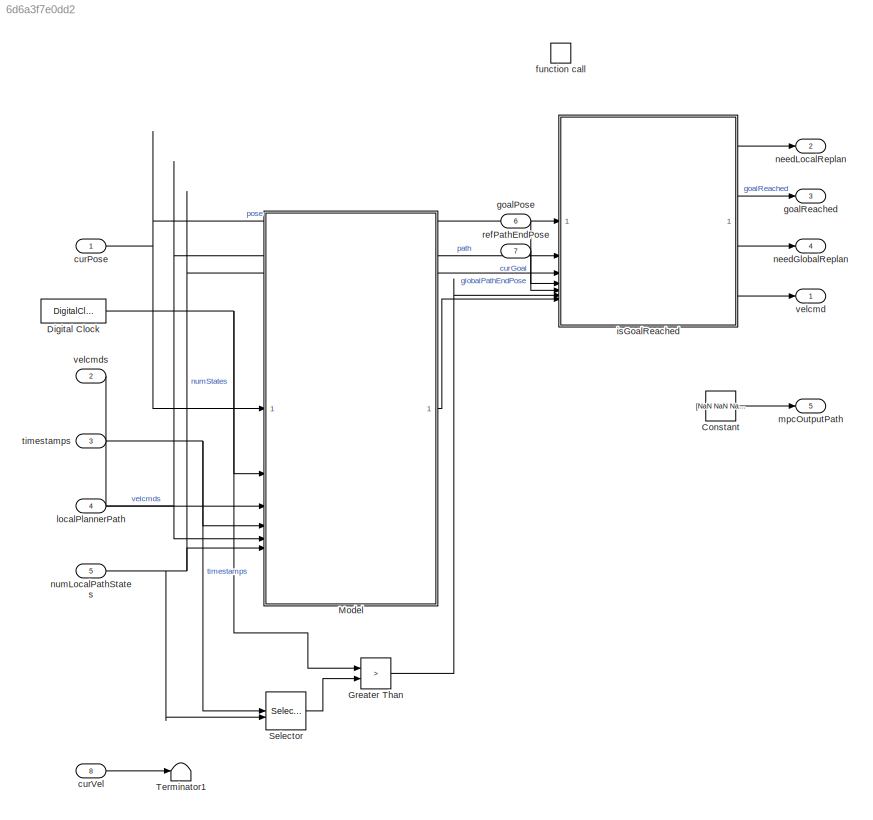
MODEL slx_6d6a3f7e0dd2
KIND model
CONFIG AbsTol = auto
CONFIG EnableMultiTasking = off
CONFIG FixedStep = 0.02
CONFIG MaxStep = auto
CONFIG MinStep = auto
CONFIG RelTol = 1e-3
CONFIG SampleTimeConstraint = Unconstrained
CONFIG SolverName = VariableStepAuto
CONFIG StartFcn = clf\nrng(1,"twister");\n
CONFIG StartTime = 0.0
CONFIG StopTime = inf
BLOCK [Constant] Constant
  Value = [NaN NaN NaN]
BLOCK [DigitalClock] Digital Clock
  SampleTime = -1
BLOCK [RelationalOperator] Greater Than
  InputSameDT = off
  Operator = >
  OutDataTypeStr = boolean
  RndMeth = Simplest
BLOCK [ModelReference] Model
  ModelNameDialog = ControllerSelector.slx
  ModelReferenceVersion = 2.7
BLOCK [Selector] Selector
  IndexOptions = Index vector (port),Select all
  Indices = [1 3],1
  InputPortWidth = 1
  NumberOfDimensions = 2
  OutputSizes = 1,1
BLOCK [Terminator] Terminator1
BLOCK [Inport] curPose
  OutDataTypeStr = double
  PortDimensions = [1 3]
  SamplingMode = Sample based
  SignalType = real
BLOCK [Inport] curVel
  OutDataTypeStr = double
  Port = 8
  PortDimensions = [1 2]
  SamplingMode = Sample based
  SignalType = real
BLOCK [TriggerPort] function call
  PortDimensions = 1
  SampleTime = [0.02,0]
  SampleTimeType = periodic
  StatesWhenEnabling = held
  TriggerSignalSampleTime = [0.02,0]
  TriggerType = function-call
  VariantControl = (inherit)
BLOCK [Inport] goalPose
  OutDataTypeStr = double
  Port = 6
  PortDimensions = [1 3]
  SamplingMode = Sample based
  SignalType = real
BLOCK [Outport] goalReached
  OutDataTypeStr = boolean
  Port = 3
  PortDimensions = 1
  SamplingMode = Sample based
  SignalType = real
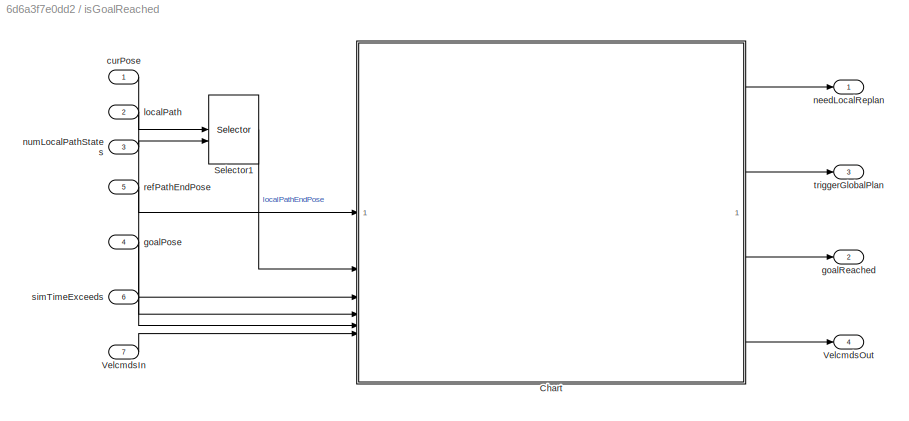
BLOCK [SubSystem] isGoalReached
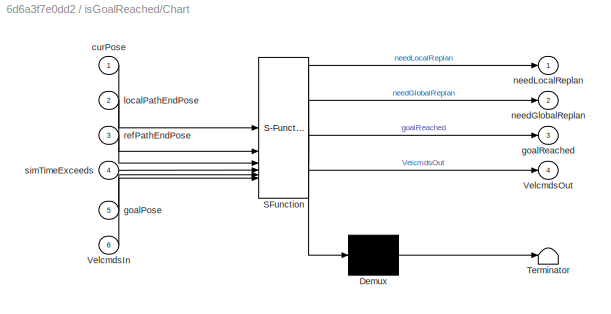
BLOCK [SubSystem] isGoalReached/Chart
  ErrorFcn = Stateflow.Translate.translate
  PermitHierarchicalResolution = ExplicitOnly
  PortSchema = {"entries":[{"content":{"sides":[{"content":{"connectorIds":["In1","In2","In3","In5","In4","In6"]},"type":"ConnectorPlacement.EquallySpacedRectSide","uuid":"dd2a119f-4099-42b7-8b31-d8f3ceb7ac2a"},{"content":{"connectorIds":["Out1","Out2","Out3","Out4"],"side":"RIGHT"},"type":"ConnectorPlacement.EquallySpacedRectSide","uuid":"fc746f1f-3a86-4997-a533-2ec7b0a515b4"},{"content":{"side":"TOP"},"type":"...<+273ch>
  SFBlockType = Chart
  TreatAsAtomicUnit = on
BLOCK [Demux] isGoalReached/Chart/ Demux 
  Outputs = 1
BLOCK [S-Function] isGoalReached/Chart/ SFunction 
  EnableBusSupport = on
  FunctionName = sf_sfun
  PortCounts = [6 5]
  SFcnIsStateOwnerBlock = off
  SFunctionDeploymentMode = off
  Tag = Stateflow S-Function 8
BLOCK [Terminator] isGoalReached/Chart/ Terminator 
BLOCK [Inport] isGoalReached/Chart/VelcmdsIn
  Port = 6
BLOCK [Outport] isGoalReached/Chart/VelcmdsOut
  Port = 4
BLOCK [Inport] isGoalReached/Chart/curPose
BLOCK [Inport] isGoalReached/Chart/goalPose
  Port = 5
BLOCK [Outport] isGoalReached/Chart/goalReached
  Port = 3
BLOCK [Inport] isGoalReached/Chart/localPathEndPose
  Port = 2
BLOCK [Outport] isGoalReached/Chart/needGlobalReplan
  Port = 2
BLOCK [Outport] isGoalReached/Chart/needLocalReplan
BLOCK [Inport] isGoalReached/Chart/refPathEndPose
  Port = 3
BLOCK [Inport] isGoalReached/Chart/simTimeExceeds
  Port = 4
BLOCK [Selector] isGoalReached/Selector1
  IndexOptions = Index vector (port),Select all
  Indices = [1 3],1
  InputPortWidth = 1
  NumberOfDimensions = 2
  OutputSizes = 1,1
BLOCK [Inport] isGoalReached/VelcmdsIn
  Port = 7
BLOCK [Outport] isGoalReached/VelcmdsOut
  Port = 4
BLOCK [Inport] isGoalReached/curPose
BLOCK [Inport] isGoalReached/goalPose
  Port = 4
BLOCK [Outport] isGoalReached/goalReached
  Port = 2
BLOCK [Inport] isGoalReached/localPath
  Port = 2
BLOCK [Outport] isGoalReached/needLocalReplan
BLOCK [Inport] isGoalReached/numLocalPathStates
  Port = 3
BLOCK [Inport] isGoalReached/refPathEndPose
  Port = 5
BLOCK [Inport] isGoalReached/simTimeExceeds
  Port = 6
BLOCK [Outport] isGoalReached/triggerGlobalPlan
  Port = 3
BLOCK [Inport] localPlannerPath
  OutDataTypeStr = double
  Port = 4
  PortDimensions = [1000 3]
  SamplingMode = Sample based
  SignalType = real
BLOCK [Outport] mpcOutputPath
  OutDataTypeStr = double
  Port = 5
  PortDimensions = [1 3]
  SamplingMode = Sample based
  SignalType = real
BLOCK [Outport] needGlobalReplan
  InitialOutput = 0
  OutDataTypeStr = boolean
  OutputWhenDisabled = reset
  Port = 4
  PortDimensions = 1
  SamplingMode = Sample based
  SignalType = real
BLOCK [Outport] needLocalReplan
  InitialOutput = 0
  OutDataTypeStr = boolean
  OutputWhenDisabled = reset
  Port = 2
  PortDimensions = 1
  SamplingMode = Sample based
  SignalType = real
BLOCK [Inport] numLocalPathStates
  OutDataTypeStr = double
  Port = 5
  PortDimensions = 1
  SamplingMode = Sample based
  SignalType = real
BLOCK [Inport] refPathEndPose
  OutDataTypeStr = double
  Port = 7
  PortDimensions = [1 3]
  SamplingMode = Sample based
  SignalType = real
BLOCK [Inport] timestamps
  OutDataTypeStr = double
  Port = 3
  PortDimensions = [1000 1]
  SamplingMode = Sample based
  SignalType = real
BLOCK [Outport] velcmd
  InitialOutput = [0 0]
  OutDataTypeStr = double
  PortDimensions = [1 2]
  SamplingMode = Sample based
  SignalType = real
BLOCK [Inport] velcmds
  OutDataTypeStr = double
  Port = 2
  PortDimensions = [1000 2]
  SamplingMode = Sample based
  SignalType = real
LINE Constant:1 -> mpcOutputPath:1
NET Digital Clock:1 -> Greater Than:1, Model:2
LINE Greater Than:1 -> isGoalReached:6
LINE Model:1 -> isGoalReached:7
LINE Selector:1 -> Greater Than:2
NET curPose:1 -> Model:1, isGoalReached:1
LINE curVel:1 -> Terminator1:1
LINE goalPose:1 -> isGoalReached:4
LINE isGoalReached/Chart:1 -> isGoalReached/needLocalReplan:1
LINE isGoalReached/Chart:2 -> isGoalReached/triggerGlobalPlan:1
LINE isGoalReached/Chart:3 -> isGoalReached/goalReached:1
LINE isGoalReached/Chart:4 -> isGoalReached/VelcmdsOut:1
LINE isGoalReached/Selector1:1 -> isGoalReached/Chart:2
LINE isGoalReached/VelcmdsIn:1 -> isGoalReached/Chart:6
LINE isGoalReached/curPose:1 -> isGoalReached/Chart:1
LINE isGoalReached/goalPose:1 -> isGoalReached/Chart:5
LINE isGoalReached/localPath:1 -> isGoalReached/Selector1:1
LINE isGoalReached/numLocalPathStates:1 -> isGoalReached/Selector1:2
LINE isGoalReached/refPathEndPose:1 -> isGoalReached/Chart:3
LINE isGoalReached/simTimeExceeds:1 -> isGoalReached/Chart:4
LINE isGoalReached:1 -> needLocalReplan:1
LINE isGoalReached:2 -> goalReached:1
LINE isGoalReached:3 -> needGlobalReplan:1
LINE isGoalReached:4 -> velcmd:1
NET localPlannerPath:1 -> Model:5, isGoalReached:2
NET numLocalPathStates:1 -> Model:6, Selector:2, isGoalReached:3
LINE refPathEndPose:1 -> isGoalReached:5
NET timestamps:1 -> Model:4, Selector:1
LINE velcmds:1 -> Model:3
note: NET lines group one-source signal fan-out (src -> all destinations, sorted); 1:1 wires keep LINE
CHART isGoalReached/Chart states=1 transitions=8
  STATE_LABEL 'distOut = distBetweenPoses(curpose, nextpose)'
  STATE_LABEL 'SCRIPT:\nfunction distOut = distBetweenPoses(curpose, nextpose)\n% distBetweenPoses return the euclidean distance between curpose and nextpose\n    distOut = vecnorm(curpose(1:2) - nextpose(1:2),2,2);\nend\n \n'
CHART  states=0 transitions=0
